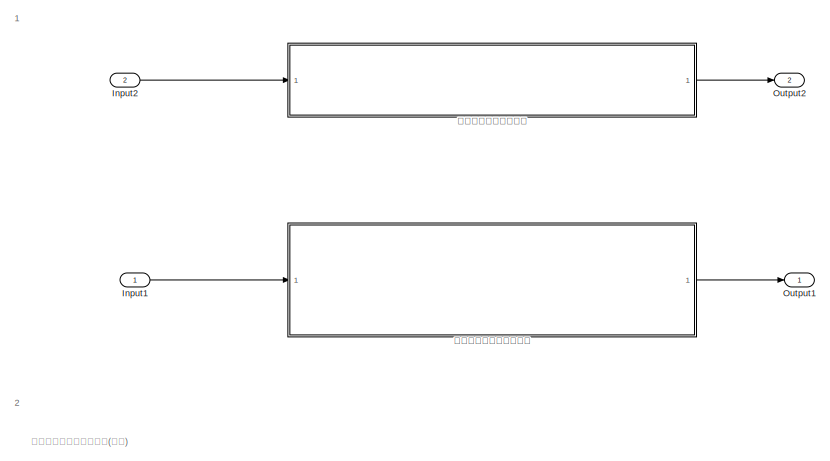
[diagram: root canvas - part 1/7, top left region]
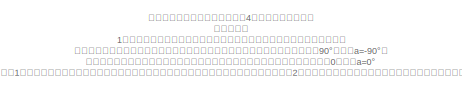
[diagram: root canvas - part 2/7, top left region]
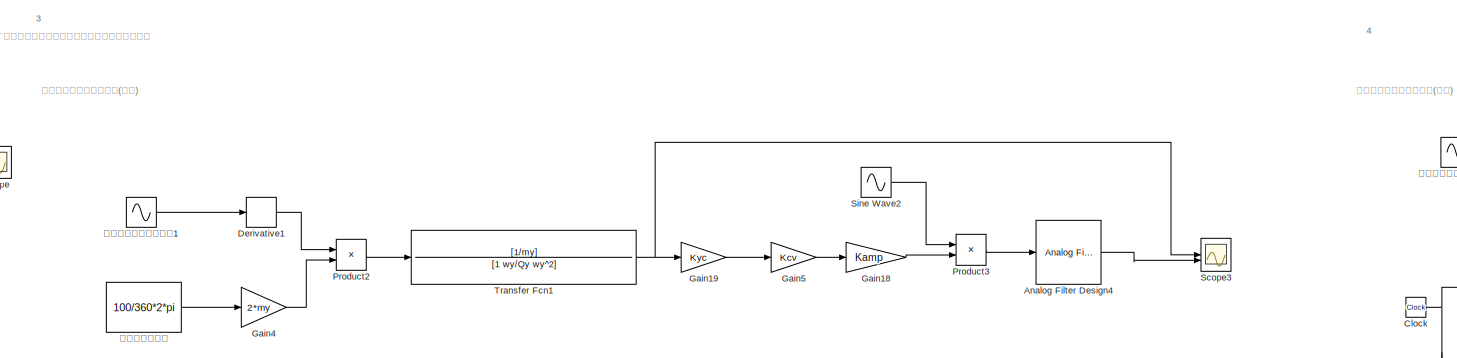
[diagram: root canvas - part 3/7, top center region]
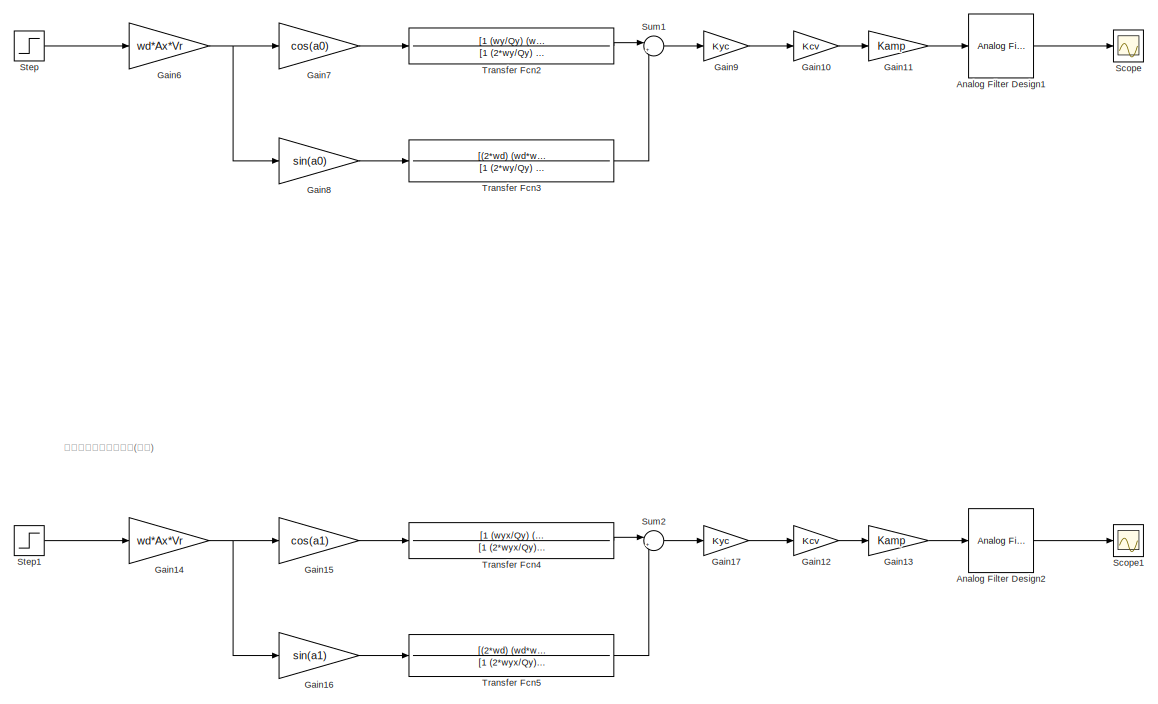
[diagram: root canvas - part 4/7, middle left region]
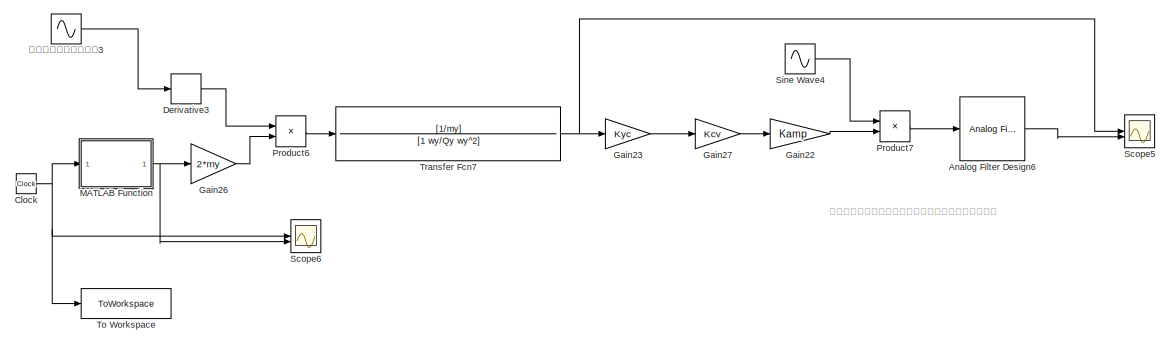
[diagram: root canvas - part 5/7, middle right region]
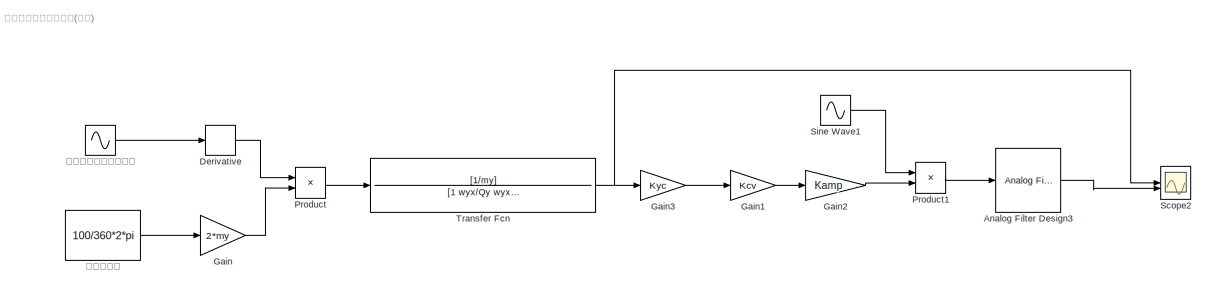
[diagram: root canvas - part 6/7, central region]
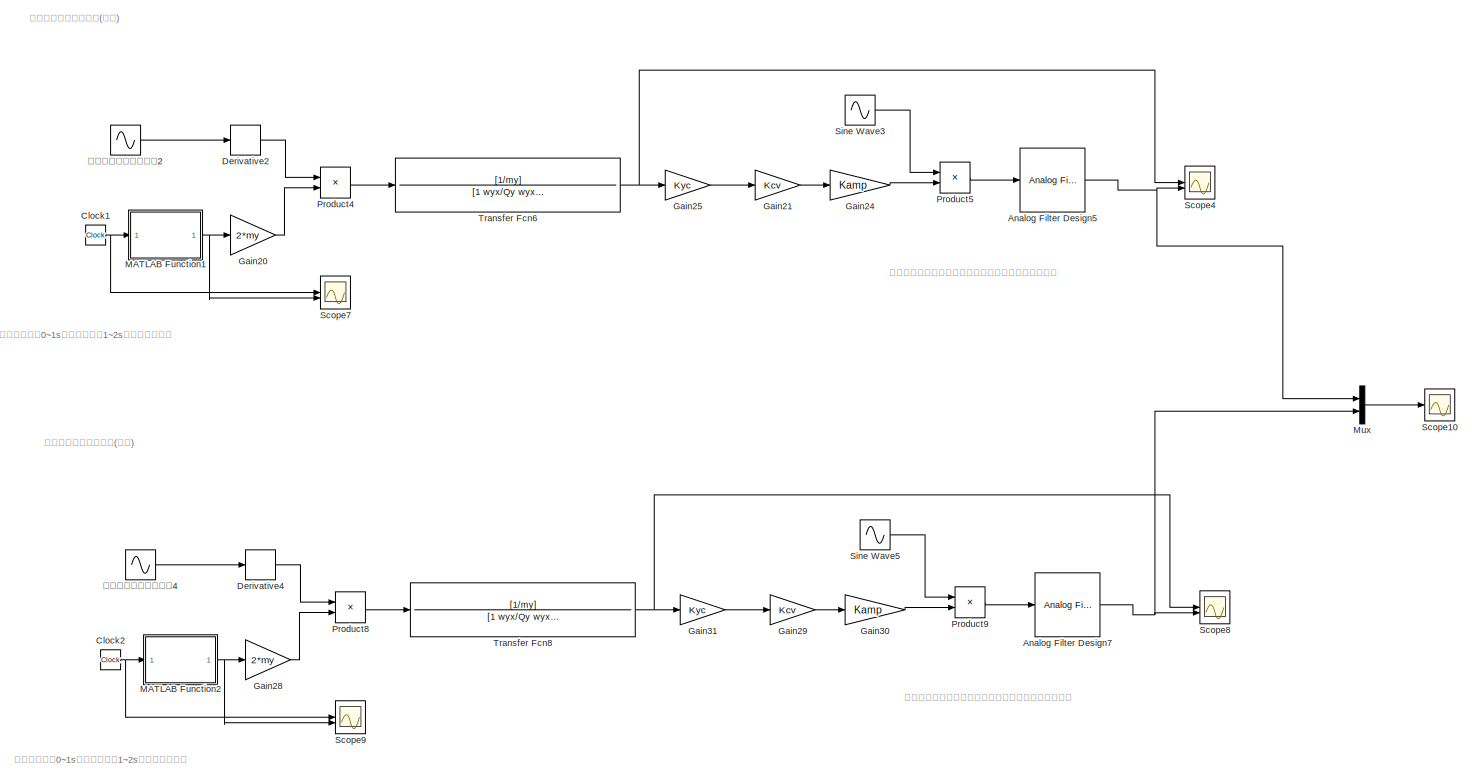
[diagram: root canvas - part 7/7, bottom right region]
MODEL slx_76fa1feacb82
KIND model
CONFIG AbsTol = auto
CONFIG EnableMultiTasking = off
CONFIG FixedStep = auto
CONFIG MaxStep = 1e-5
CONFIG MinStep = auto
CONFIG RelTol = 1e-3
CONFIG SampleTimeConstraint = Unconstrained
CONFIG SolverName = VariableStepAuto
CONFIG StartTime = 0.0
CONFIG StopTime = 10
WORKSPACE source: mxarray member
WORKSPACE Ax = 5e-06
WORKSPACE Kamp = 210
WORKSPACE Kcv = 3.5
WORKSPACE Kyc = 114810
WORKSPACE Qy = 320
WORKSPACE Vr = 1
WORKSPACE a0 = 0
WORKSPACE a1 = -1.57079632679
WORKSPACE my = 6.7e-07
WORKSPACE wd = 24001.7678734
WORKSPACE wy = 24416.4581037
WORKSPACE wyx = 24001.7678734
BLOCK [Reference] Analog Filter Design1  REF=dsparch4/Analog
Filter Design
  SourceBlock = dsparch4/Analog\nFilter Design
  SourceType = Analog Filter Design
BLOCK [Reference] Analog Filter Design2  REF=dsparch4/Analog
Filter Design
  SourceBlock = dsparch4/Analog\nFilter Design
  SourceType = Analog Filter Design
BLOCK [Reference] Analog Filter Design3  REF=dsparch4/Analog
Filter Design
  SourceBlock = dsparch4/Analog\nFilter Design
  SourceType = Analog Filter Design
BLOCK [Reference] Analog Filter Design4  REF=dsparch4/Analog
Filter Design
  SourceBlock = dsparch4/Analog\nFilter Design
  SourceType = Analog Filter Design
BLOCK [Reference] Analog Filter Design5  REF=dsparch4/Analog
Filter Design
  SourceBlock = dsparch4/Analog\nFilter Design
  SourceType = Analog Filter Design
BLOCK [Reference] Analog Filter Design6  REF=dsparch4/Analog
Filter Design
  SourceBlock = dsparch4/Analog\nFilter Design
  SourceType = Analog Filter Design
BLOCK [Reference] Analog Filter Design7  REF=dsparch4/Analog
Filter Design
  SourceBlock = dsparch4/Analog\nFilter Design
  SourceType = Analog Filter Design
BLOCK [Clock] Clock
BLOCK [Clock] Clock1
BLOCK [Clock] Clock2
BLOCK [Derivative] Derivative
BLOCK [Derivative] Derivative1
BLOCK [Derivative] Derivative2
BLOCK [Derivative] Derivative3
BLOCK [Derivative] Derivative4
BLOCK [Gain] Gain
  Gain = 2*my
BLOCK [Gain] Gain1
  Gain = Kcv
BLOCK [Gain] Gain10
  Gain = Kcv
BLOCK [Gain] Gain11
  Gain = Kamp
BLOCK [Gain] Gain12
  Gain = Kcv
BLOCK [Gain] Gain13
  Gain = Kamp
BLOCK [Gain] Gain14
  Gain = wd*Ax*Vr
BLOCK [Gain] Gain15
  Gain = cos(a1)
BLOCK [Gain] Gain16
  Gain = sin(a1)
BLOCK [Gain] Gain17
  Gain = Kyc
BLOCK [Gain] Gain18
  Gain = Kamp
BLOCK [Gain] Gain19
  Gain = Kyc
BLOCK [Gain] Gain2
  Gain = Kamp
BLOCK [Gain] Gain20
  Gain = 2*my
BLOCK [Gain] Gain21
  Gain = Kcv
BLOCK [Gain] Gain22
  Gain = Kamp
BLOCK [Gain] Gain23
  Gain = Kyc
BLOCK [Gain] Gain24
  Gain = Kamp
BLOCK [Gain] Gain25
  Gain = Kyc
BLOCK [Gain] Gain26
  Gain = 2*my
BLOCK [Gain] Gain27
  Gain = Kcv
BLOCK [Gain] Gain28
  Gain = 2*my
BLOCK [Gain] Gain29
  Gain = Kcv
BLOCK [Gain] Gain3
  Gain = Kyc
BLOCK [Gain] Gain30
  Gain = Kamp
BLOCK [Gain] Gain31
  Gain = Kyc
BLOCK [Gain] Gain4
  Gain = 2*my
BLOCK [Gain] Gain5
  Gain = Kcv
BLOCK [Gain] Gain6
  Gain = wd*Ax*Vr
BLOCK [Gain] Gain7
  Gain = cos(a0)
BLOCK [Gain] Gain8
  Gain = sin(a0)
BLOCK [Gain] Gain9
  Gain = Kyc
BLOCK [Inport] Input1
BLOCK [Inport] Input2
  Port = 2
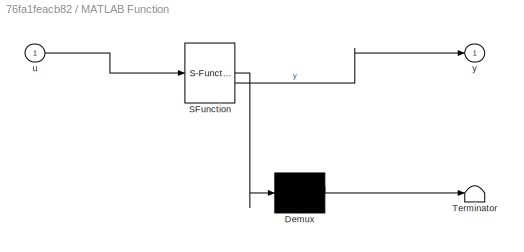
BLOCK [SubSystem] MATLAB Function
  ErrorFcn = Stateflow.Translate.translate
  LibrarySourceBlock = simulink/User-Defined\nFunctions/MATLAB Function
  PermitHierarchicalResolution = ExplicitOnly
  SFBlockType = MATLAB Function
  TreatAsAtomicUnit = on
BLOCK [Demux] MATLAB Function/ Demux 
  Outputs = 1
BLOCK [S-Function] MATLAB Function/ SFunction 
  EnableBusSupport = on
  FunctionName = sf_sfun
  PortCounts = [1 2]
  SFcnIsStateOwnerBlock = off
  SFunctionDeploymentMode = off
  Tag = Stateflow S-Function 2
BLOCK [Terminator] MATLAB Function/ Terminator 
BLOCK [Inport] MATLAB Function/u
BLOCK [Outport] MATLAB Function/y
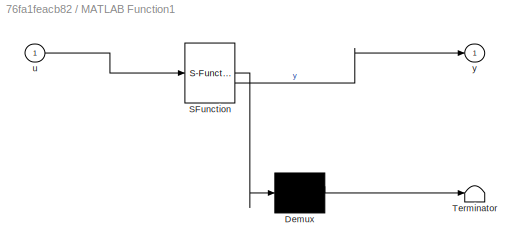
BLOCK [SubSystem] MATLAB Function1
  ErrorFcn = Stateflow.Translate.translate
  LibrarySourceBlock = simulink/User-Defined\nFunctions/MATLAB Function
  PermitHierarchicalResolution = ExplicitOnly
  SFBlockType = MATLAB Function
  TreatAsAtomicUnit = on
BLOCK [Demux] MATLAB Function1/ Demux 
  Outputs = 1
BLOCK [S-Function] MATLAB Function1/ SFunction 
  EnableBusSupport = on
  FunctionName = sf_sfun
  PortCounts = [1 2]
  SFcnIsStateOwnerBlock = off
  SFunctionDeploymentMode = off
  Tag = Stateflow S-Function 1
BLOCK [Terminator] MATLAB Function1/ Terminator 
BLOCK [Inport] MATLAB Function1/u
BLOCK [Outport] MATLAB Function1/y
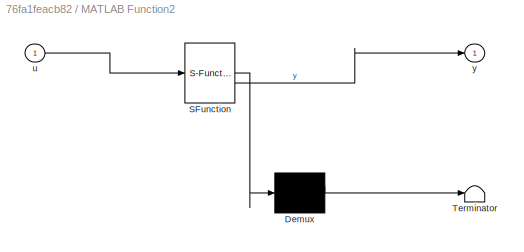
BLOCK [SubSystem] MATLAB Function2
  ErrorFcn = Stateflow.Translate.translate
  LibrarySourceBlock = simulink/User-Defined\nFunctions/MATLAB Function
  PermitHierarchicalResolution = ExplicitOnly
  SFBlockType = MATLAB Function
  TreatAsAtomicUnit = on
BLOCK [Demux] MATLAB Function2/ Demux 
  Outputs = 1
BLOCK [S-Function] MATLAB Function2/ SFunction 
  EnableBusSupport = on
  FunctionName = sf_sfun
  PortCounts = [1 2]
  SFcnIsStateOwnerBlock = off
  SFunctionDeploymentMode = off
  Tag = Stateflow S-Function 3
BLOCK [Terminator] MATLAB Function2/ Terminator 
BLOCK [Inport] MATLAB Function2/u
BLOCK [Outport] MATLAB Function2/y
BLOCK [Mux] Mux
  DisplayOption = bar
  Inputs = 2
BLOCK [Outport] Output1
BLOCK [Outport] Output2
  Port = 2
BLOCK [Product] Product
BLOCK [Product] Product1
BLOCK [Product] Product2
BLOCK [Product] Product3
BLOCK [Product] Product4
BLOCK [Product] Product5
BLOCK [Product] Product6
BLOCK [Product] Product7
BLOCK [Product] Product8
BLOCK [Product] Product9
BLOCK [Scope] Scope
  Floating = off
  NumInputPorts = 1
  ScopeSpecificationString = Simulink.scopes.TimeScopeBlockCfg('CurrentConfiguration', extmgr.ConfigurationSet(extmgr.Configuration('Core','General UI',true),extmgr.Configuration('Core','Source UI',true),extmgr.Configuration('Sources','WiredSimulink',true),extmgr.Configuration('Visuals','Time Domain',true,'SerializedDisplays',{struct('MinYLimReal','-0.1048','MaxYLimReal','0.94323','YLabelReal','','MinYLimMag','0.00000','MaxYL...<+1438ch>
BLOCK [Scope] Scope1
  Floating = off
  NumInputPorts = 1
  ScopeSpecificationString = Simulink.scopes.TimeScopeBlockCfg('CurrentConfiguration', extmgr.ConfigurationSet(extmgr.Configuration('Core','General UI',true),extmgr.Configuration('Core','Source UI',true),extmgr.Configuration('Sources','WiredSimulink',true,'DataLoggingVariableName','ScopeData1'),extmgr.Configuration('Visuals','Time Domain',true,'SerializedDisplays',{struct('MinYLimReal','-0.70316','MaxYLimReal','6.32844','YLab...<+1480ch>
BLOCK [Scope] Scope10
  Floating = off
  NumInputPorts = 1
  ScopeSpecificationString = Simulink.scopes.TimeScopeBlockCfg('CurrentConfiguration', extmgr.ConfigurationSet(extmgr.Configuration('Core','General UI',true),extmgr.Configuration('Core','Source UI',true),extmgr.Configuration('Sources','WiredSimulink',true,'DataLoggingVariableName','ScopeData3'),extmgr.Configuration('Visuals','Time Domain',true,'SerializedDisplays',{struct('MinYLimReal','-9.09372','MaxYLimReal','11.87762','YLa...<+1462ch>
BLOCK [Scope] Scope2
  Floating = off
  NumInputPorts = 2
  ScopeSpecificationString = Simulink.scopes.TimeScopeBlockCfg('CurrentConfiguration', extmgr.ConfigurationSet(extmgr.Configuration('Core','General UI',true),extmgr.Configuration('Core','Source UI',true),extmgr.Configuration('Sources','WiredSimulink',true,'DataLoggingVariableName','ScopeData2'),extmgr.Configuration('Visuals','Time Domain',true,'SerializedDisplays',{struct('MinYLimReal','-0.00000029','MaxYLimReal','0.00000029'...<+2110ch>
BLOCK [Scope] Scope3
  Floating = off
  NumInputPorts = 2
  ScopeSpecificationString = Simulink.scopes.TimeScopeBlockCfg('CurrentConfiguration', extmgr.ConfigurationSet(extmgr.Configuration('Core','General UI',true),extmgr.Configuration('Core','Source UI',true),extmgr.Configuration('Sources','WiredSimulink',true,'DataLoggingVariableName','ScopeData3'),extmgr.Configuration('Visuals','Time Domain',true,'SerializedDisplays',{struct('MinYLimReal','-0.000000045','MaxYLimReal','0.00000004...<+2112ch>
BLOCK [Scope] Scope4
  Floating = off
  NumInputPorts = 2
  ScopeSpecificationString = Simulink.scopes.TimeScopeBlockCfg('CurrentConfiguration', extmgr.ConfigurationSet(extmgr.Configuration('Core','General UI',true),extmgr.Configuration('Core','Source UI',true),extmgr.Configuration('Sources','WiredSimulink',true,'DataLoggingVariableName','ScopeData4'),extmgr.Configuration('Visuals','Time Domain',true,'SerializedDisplays',{struct('MinYLimReal','-0.00000021','MaxYLimReal','0.00000021'...<+2673ch>
BLOCK [Scope] Scope5
  Floating = off
  NumInputPorts = 2
  ScopeSpecificationString = Simulink.scopes.TimeScopeBlockCfg('CurrentConfiguration', extmgr.ConfigurationSet(extmgr.Configuration('Core','General UI',true),extmgr.Configuration('Core','Source UI',true),extmgr.Configuration('Sources','WiredSimulink',true,'DataLoggingVariableName','ScopeData5'),extmgr.Configuration('Visuals','Time Domain',true,'SerializedDisplays',{struct('MinYLimReal','-0.00000013','MaxYLimReal','0.00000013'...<+2156ch>
BLOCK [Scope] Scope6
  Floating = off
  NumInputPorts = 2
  ScopeSpecificationString = Simulink.scopes.TimeScopeBlockCfg('CurrentConfiguration', extmgr.ConfigurationSet(extmgr.Configuration('Core','General UI',true),extmgr.Configuration('Core','Source UI',true),extmgr.Configuration('Sources','WiredSimulink',true,'DataLoggingVariableName','ScopeData6'),extmgr.Configuration('Visuals','Time Domain',true,'SerializedDisplays',{struct('MinYLimReal','-0.12499','MaxYLimReal','1.12488','YLab...<+2477ch>
BLOCK [Scope] Scope7
  Floating = off
  NumInputPorts = 2
  ScopeSpecificationString = Simulink.scopes.TimeScopeBlockCfg('CurrentConfiguration', extmgr.ConfigurationSet(extmgr.Configuration('Core','General UI',true),extmgr.Configuration('Core','Source UI',true),extmgr.Configuration('Sources','WiredSimulink',true,'DataLoggingVariableName','ScopeData7'),extmgr.Configuration('Visuals','Time Domain',true,'SerializedDisplays',{struct('MinYLimReal','-0.25','MaxYLimReal','2.25','YLabelReal...<+2132ch>
BLOCK [Scope] Scope8
  Floating = off
  NumInputPorts = 2
  ScopeSpecificationString = Simulink.scopes.TimeScopeBlockCfg('CurrentConfiguration', extmgr.ConfigurationSet(extmgr.Configuration('Core','General UI',true),extmgr.Configuration('Core','Source UI',true),extmgr.Configuration('Sources','WiredSimulink',true,'DataLoggingVariableName','ScopeData1'),extmgr.Configuration('Visuals','Time Domain',true,'SerializedDisplays',{struct('MinYLimReal','-0.00000029','MaxYLimReal','0.00000029'...<+2648ch>
BLOCK [Scope] Scope9
  Floating = off
  NumInputPorts = 2
  ScopeSpecificationString = Simulink.scopes.TimeScopeBlockCfg('CurrentConfiguration', extmgr.ConfigurationSet(extmgr.Configuration('Core','General UI',true),extmgr.Configuration('Core','Source UI',true),extmgr.Configuration('Sources','WiredSimulink',true,'DataLoggingVariableName','ScopeData2'),extmgr.Configuration('Visuals','Time Domain',true,'SerializedDisplays',{struct('MinYLimReal','-0.25','MaxYLimReal','2.25','YLabelReal...<+2132ch>
BLOCK [Sin] Sine Wave1
  Frequency = wd
  SampleTime = 0
BLOCK [Sin] Sine Wave2
  Frequency = wd
  Phase = pi/2
  SampleTime = 0
BLOCK [Sin] Sine Wave3
  Frequency = wd
  SampleTime = 0
BLOCK [Sin] Sine Wave4
  Frequency = wd
  Phase = 90
  SampleTime = 0
BLOCK [Sin] Sine Wave5
  Frequency = wd
  SampleTime = 0
BLOCK [Step] Step
  SampleTime = 0
  Time = 0
BLOCK [Step] Step1
  SampleTime = 0
  Time = 0
BLOCK [Sum] Sum1
  Inputs = |+-
BLOCK [Sum] Sum2
  Inputs = |+-
BLOCK [ToWorkspace] To Workspace
  FixptAsFi = on
  MaxDataPoints = inf
  SampleTime = -1
  SaveFormat = Timeseries
  VariableName = simout
BLOCK [TransferFcn] Transfer Fcn
  Denominator = [1 wyx/Qy wyx^2]
  Numerator = [1/my]
BLOCK [TransferFcn] Transfer Fcn1
  Denominator = [1 wy/Qy wy^2]
  Numerator = [1/my]
BLOCK [TransferFcn] Transfer Fcn2
  Denominator = [1 (2*wy/Qy) (2*wd^2+2*wy^2+wy^2/Qy^2) (2*wy*(wd^2+wy^2)/Qy) (wd^4+wy^4+wd^2*wy^2/Qy^2-2*wd^2*wy^2)]
  Numerator = [1 (wy/Qy) (wy^2-wd^2)]
BLOCK [TransferFcn] Transfer Fcn3
  Denominator = [1 (2*wy/Qy) (2*wd^2+2*wy^2+wy^2/Qy^2) (2*wy*(wd^2+wy^2)/Qy) (wd^4+wy^4+wd^2*wy^2/Qy^2-2*wd^2*wy^2)]
  Numerator = [(2*wd) (wd*wy/Qy)]
BLOCK [TransferFcn] Transfer Fcn4
  Denominator = [1 (2*wyx/Qy) (2*wd^2+2*wyx^2+wyx^2/Qy^2) (2*wyx*(wd^2+wyx^2)/Qy) (wd^4+wyx^4+wd^2*wyx^2/Qy^2-2*wd^2*wyx^2)]
  Numerator = [1 (wyx/Qy) (wyx^2-wd^2)]
BLOCK [TransferFcn] Transfer Fcn5
  Denominator = [1 (2*wyx/Qy) (2*wd^2+2*wyx^2+wyx^2/Qy^2) (2*wyx*(wd^2+wyx^2)/Qy) (wd^4+wyx^4+wd^2*wyx^2/Qy^2-2*wd^2*wyx^2)]
  Numerator = [(2*wd) (wd*wyx/Qy)]
BLOCK [TransferFcn] Transfer Fcn6
  Denominator = [1 wyx/Qy wyx^2]
  Numerator = [1/my]
BLOCK [TransferFcn] Transfer Fcn7
  Denominator = [1 wy/Qy wy^2]
  Numerator = [1/my]
BLOCK [TransferFcn] Transfer Fcn8
  Denominator = [1 wyx/Qy wyx^2]
  Numerator = [1/my]
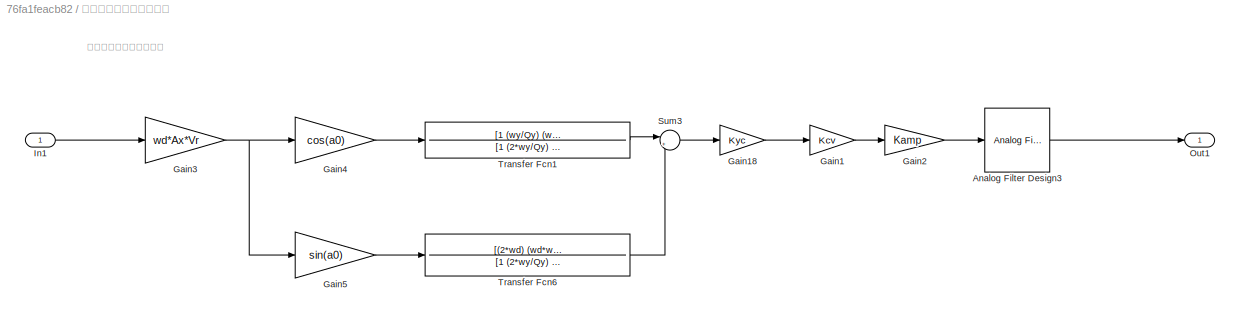
BLOCK [SubSystem] 模态不匹配开环检测系统
BLOCK [Reference] 模态不匹配开环检测系统/Analog Filter Design3  REF=dsparch4/Analog
Filter Design
  SourceBlock = dsparch4/Analog\nFilter Design
  SourceType = Analog Filter Design
BLOCK [Gain] 模态不匹配开环检测系统/Gain1
  Gain = Kcv
BLOCK [Gain] 模态不匹配开环检测系统/Gain18
  Gain = Kyc
BLOCK [Gain] 模态不匹配开环检测系统/Gain2
  Gain = Kamp
BLOCK [Gain] 模态不匹配开环检测系统/Gain3
  Gain = wd*Ax*Vr
BLOCK [Gain] 模态不匹配开环检测系统/Gain4
  Gain = cos(a0)
BLOCK [Gain] 模态不匹配开环检测系统/Gain5
  Gain = sin(a0)
BLOCK [Inport] 模态不匹配开环检测系统/In1
BLOCK [Outport] 模态不匹配开环检测系统/Out1
BLOCK [Sum] 模态不匹配开环检测系统/Sum3
  Inputs = |+-
BLOCK [TransferFcn] 模态不匹配开环检测系统/Transfer Fcn1
  Denominator = [1 (2*wy/Qy) (2*wd^2+2*wy^2+wy^2/Qy^2) (2*wy*(wd^2+wy^2)/Qy) (wd^4+wy^4+wd^2*wy^2/Qy^2-2*wd^2*wy^2)]
  Numerator = [1 (wy/Qy) (wy^2-wd^2)]
BLOCK [TransferFcn] 模态不匹配开环检测系统/Transfer Fcn6
  Denominator = [1 (2*wy/Qy) (2*wd^2+2*wy^2+wy^2/Qy^2) (2*wy*(wd^2+wy^2)/Qy) (wd^4+wy^4+wd^2*wy^2/Qy^2-2*wd^2*wy^2)]
  Numerator = [(2*wd) (wd*wy/Qy)]
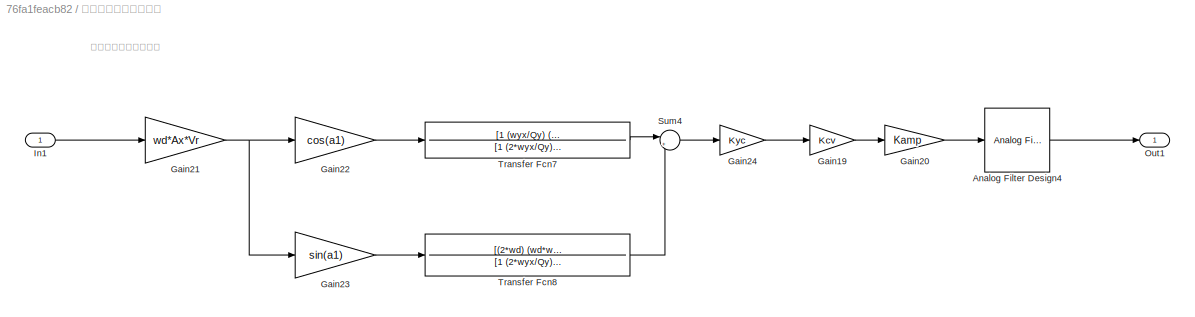
BLOCK [SubSystem] 模态匹配开环检测系统
BLOCK [Reference] 模态匹配开环检测系统/Analog Filter Design4  REF=dsparch4/Analog
Filter Design
  SourceBlock = dsparch4/Analog\nFilter Design
  SourceType = Analog Filter Design
BLOCK [Gain] 模态匹配开环检测系统/Gain19
  Gain = Kcv
BLOCK [Gain] 模态匹配开环检测系统/Gain20
  Gain = Kamp
BLOCK [Gain] 模态匹配开环检测系统/Gain21
  Gain = wd*Ax*Vr
BLOCK [Gain] 模态匹配开环检测系统/Gain22
  Gain = cos(a1)
BLOCK [Gain] 模态匹配开环检测系统/Gain23
  Gain = sin(a1)
BLOCK [Gain] 模态匹配开环检测系统/Gain24
  Gain = Kyc
BLOCK [Inport] 模态匹配开环检测系统/In1
BLOCK [Outport] 模态匹配开环检测系统/Out1
BLOCK [Sum] 模态匹配开环检测系统/Sum4
  Inputs = |+-
BLOCK [TransferFcn] 模态匹配开环检测系统/Transfer Fcn7
  Denominator = [1 (2*wyx/Qy) (2*wd^2+2*wyx^2+wyx^2/Qy^2) (2*wyx*(wd^2+wyx^2)/Qy) (wd^4+wyx^4+wd^2*wyx^2/Qy^2-2*wd^2*wyx^2)]
  Numerator = [1 (wyx/Qy) (wyx^2-wd^2)]
BLOCK [TransferFcn] 模态匹配开环检测系统/Transfer Fcn8
  Denominator = [1 (2*wyx/Qy) (2*wd^2+2*wyx^2+wyx^2/Qy^2) (2*wyx*(wd^2+wyx^2)/Qy) (wd^4+wyx^4+wd^2*wyx^2/Qy^2-2*wd^2*wyx^2)]
  Numerator = [(2*wd) (wd*wyx/Qy)]
BLOCK [Constant] 角速度输入
  Value = 100/360*2*pi
BLOCK [Constant] 角速度输入恒定
  Value = 100/360*2*pi
BLOCK [Sin] 驱动模态速度位移输入
  Amplitude = Ax
  Frequency = wd
  SampleTime = 0
BLOCK [Sin] 驱动模态速度位移输入1
  Amplitude = Ax
  Frequency = wd
  SampleTime = 0
BLOCK [Sin] 驱动模态速度位移输入2
  Amplitude = Ax
  Frequency = wd
  SampleTime = 0
BLOCK [Sin] 驱动模态速度位移输入3
  Amplitude = Ax
  Frequency = wd
  SampleTime = 0
BLOCK [Sin] 驱动模态速度位移输入4
  Amplitude = Ax
  Frequency = wd
  SampleTime = 0
ANNOTATION (root): 结果如果不对，看看解调正弦信号的相位是否正确
ANNOTATION (root): 仿真说明 ：参考杨成博士论文第4章开环检测部分仿真 仿真解释 ： 1）所有仿真均为开环检测系统，但是分为模态匹配与模态不匹配两大类： 模态匹配特点时 则驱动与检测模态谐振频率相同，因此哥氏信号经检测模态相移90°，因此a=-90°。 模态不匹配时 驱动与检测模态间有频差，因此哥氏信号经检测模态后相移几乎为0，因此a=0° 2）一共四个仿真： 1 中对两种状态开环检测系统进行线性分析，即进行奈奎斯特图、零极点图、伯德图观测； 2 中从频域传递函数角度观测 两种状态开环检测系统的阶跃响应输出； 3 中从时域出发观测在稳定驱动位移信号与恒定角速度输入时系统输出的状态； 4 中较 3 所不同的是，输入角速度在0~1s内保持恒定，1~2s内发生线性增加只150Hz,观测系统的输出。
ANNOTATION (root): 模态不匹配开环检测系统(时域)
ANNOTATION (root): 模态匹配开环检测系统(时域)
ANNOTATION (root): 1
ANNOTATION (root): 2
ANNOTATION (root): 3
ANNOTATION (root): 4
ANNOTATION (root): 模态不匹配开环检测系统(频域)
ANNOTATION (root): 模态匹配开环检测系统(频域)
ANNOTATION (root): 观测开环检测输出随输入角速度频率变化，可反应带宽
ANNOTATION (root): 输入角速度：0~1s内恒定输入；1~2s内线性频率增加
ANNOTATION 模态不匹配开环检测系统: 模态不匹配开环检测系统
ANNOTATION 模态匹配开环检测系统: 模态匹配开环检测系统
LINE Analog Filter Design1:1 -> Scope:1
LINE Analog Filter Design2:1 -> Scope1:1
LINE Analog Filter Design3:1 -> Scope2:2
LINE Analog Filter Design4:1 -> Scope3:2
NET Analog Filter Design5:1 -> Mux:1, Scope4:2
LINE Analog Filter Design6:1 -> Scope5:2
NET Analog Filter Design7:1 -> Mux:2, Scope8:2
NET Clock1:1 -> MATLAB Function1:1, Scope7:1
NET Clock2:1 -> MATLAB Function2:1, Scope9:1
NET Clock:1 -> MATLAB Function:1, Scope6:1, To Workspace:1
LINE Derivative1:1 -> Product2:1
LINE Derivative2:1 -> Product4:1
LINE Derivative3:1 -> Product6:1
LINE Derivative4:1 -> Product8:1
LINE Derivative:1 -> Product:1
LINE Gain10:1 -> Gain11:1
LINE Gain11:1 -> Analog Filter Design1:1
LINE Gain12:1 -> Gain13:1
LINE Gain13:1 -> Analog Filter Design2:1
NET Gain14:1 -> Gain15:1, Gain16:1
LINE Gain15:1 -> Transfer Fcn4:1
LINE Gain16:1 -> Transfer Fcn5:1
LINE Gain17:1 -> Gain12:1
LINE Gain18:1 -> Product3:2
LINE Gain19:1 -> Gain5:1
LINE Gain1:1 -> Gain2:1
LINE Gain20:1 -> Product4:2
LINE Gain21:1 -> Gain24:1
LINE Gain22:1 -> Product7:2
LINE Gain23:1 -> Gain27:1
LINE Gain24:1 -> Product5:2
LINE Gain25:1 -> Gain21:1
LINE Gain26:1 -> Product6:2
LINE Gain27:1 -> Gain22:1
LINE Gain28:1 -> Product8:2
LINE Gain29:1 -> Gain30:1
LINE Gain2:1 -> Product1:2
LINE Gain30:1 -> Product9:2
LINE Gain31:1 -> Gain29:1
LINE Gain3:1 -> Gain1:1
LINE Gain4:1 -> Product2:2
LINE Gain5:1 -> Gain18:1
NET Gain6:1 -> Gain7:1, Gain8:1
LINE Gain7:1 -> Transfer Fcn2:1
LINE Gain8:1 -> Transfer Fcn3:1
LINE Gain9:1 -> Gain10:1
LINE Gain:1 -> Product:2
LINE Input1:1 -> 模态不匹配开环检测系统:1
LINE Input2:1 -> 模态匹配开环检测系统:1
NET MATLAB Function1:1 -> Gain20:1, Scope7:2
NET MATLAB Function2:1 -> Gain28:1, Scope9:2
NET MATLAB Function:1 -> Gain26:1, Scope6:2
LINE Mux:1 -> Scope10:1
LINE Product1:1 -> Analog Filter Design3:1
LINE Product2:1 -> Transfer Fcn1:1
LINE Product3:1 -> Analog Filter Design4:1
LINE Product4:1 -> Transfer Fcn6:1
LINE Product5:1 -> Analog Filter Design5:1
LINE Product6:1 -> Transfer Fcn7:1
LINE Product7:1 -> Analog Filter Design6:1
LINE Product8:1 -> Transfer Fcn8:1
LINE Product9:1 -> Analog Filter Design7:1
LINE Product:1 -> Transfer Fcn:1
LINE Sine Wave1:1 -> Product1:1
LINE Sine Wave2:1 -> Product3:1
LINE Sine Wave3:1 -> Product5:1
LINE Sine Wave4:1 -> Product7:1
LINE Sine Wave5:1 -> Product9:1
LINE Step1:1 -> Gain14:1
LINE Step:1 -> Gain6:1
LINE Sum1:1 -> Gain9:1
LINE Sum2:1 -> Gain17:1
NET Transfer Fcn1:1 -> Gain19:1, Scope3:1
LINE Transfer Fcn2:1 -> Sum1:1
LINE Transfer Fcn3:1 -> Sum1:2
LINE Transfer Fcn4:1 -> Sum2:1
LINE Transfer Fcn5:1 -> Sum2:2
NET Transfer Fcn6:1 -> Gain25:1, Scope4:1
NET Transfer Fcn7:1 -> Gain23:1, Scope5:1
NET Transfer Fcn8:1 -> Gain31:1, Scope8:1
NET Transfer Fcn:1 -> Gain3:1, Scope2:1
LINE 模态不匹配开环检测系统/Analog Filter Design3:1 -> 模态不匹配开环检测系统/Out1:1
LINE 模态不匹配开环检测系统/Gain18:1 -> 模态不匹配开环检测系统/Gain1:1
LINE 模态不匹配开环检测系统/Gain1:1 -> 模态不匹配开环检测系统/Gain2:1
LINE 模态不匹配开环检测系统/Gain2:1 -> 模态不匹配开环检测系统/Analog Filter Design3:1
NET 模态不匹配开环检测系统/Gain3:1 -> 模态不匹配开环检测系统/Gain4:1, 模态不匹配开环检测系统/Gain5:1
LINE 模态不匹配开环检测系统/Gain4:1 -> 模态不匹配开环检测系统/Transfer Fcn1:1
LINE 模态不匹配开环检测系统/Gain5:1 -> 模态不匹配开环检测系统/Transfer Fcn6:1
LINE 模态不匹配开环检测系统/In1:1 -> 模态不匹配开环检测系统/Gain3:1
LINE 模态不匹配开环检测系统/Sum3:1 -> 模态不匹配开环检测系统/Gain18:1
LINE 模态不匹配开环检测系统/Transfer Fcn1:1 -> 模态不匹配开环检测系统/Sum3:1
LINE 模态不匹配开环检测系统/Transfer Fcn6:1 -> 模态不匹配开环检测系统/Sum3:2
LINE 模态不匹配开环检测系统:1 -> Output1:1
LINE 模态匹配开环检测系统/Analog Filter Design4:1 -> 模态匹配开环检测系统/Out1:1
LINE 模态匹配开环检测系统/Gain19:1 -> 模态匹配开环检测系统/Gain20:1
LINE 模态匹配开环检测系统/Gain20:1 -> 模态匹配开环检测系统/Analog Filter Design4:1
NET 模态匹配开环检测系统/Gain21:1 -> 模态匹配开环检测系统/Gain22:1, 模态匹配开环检测系统/Gain23:1
LINE 模态匹配开环检测系统/Gain22:1 -> 模态匹配开环检测系统/Transfer Fcn7:1
LINE 模态匹配开环检测系统/Gain23:1 -> 模态匹配开环检测系统/Transfer Fcn8:1
LINE 模态匹配开环检测系统/Gain24:1 -> 模态匹配开环检测系统/Gain19:1
LINE 模态匹配开环检测系统/In1:1 -> 模态匹配开环检测系统/Gain21:1
LINE 模态匹配开环检测系统/Sum4:1 -> 模态匹配开环检测系统/Gain24:1
LINE 模态匹配开环检测系统/Transfer Fcn7:1 -> 模态匹配开环检测系统/Sum4:1
LINE 模态匹配开环检测系统/Transfer Fcn8:1 -> 模态匹配开环检测系统/Sum4:2
LINE 模态匹配开环检测系统:1 -> Output2:1
LINE 角速度输入:1 -> Gain:1
LINE 角速度输入恒定:1 -> Gain4:1
LINE 驱动模态速度位移输入1:1 -> Derivative1:1
LINE 驱动模态速度位移输入2:1 -> Derivative2:1
LINE 驱动模态速度位移输入3:1 -> Derivative3:1
LINE 驱动模态速度位移输入4:1 -> Derivative4:1
LINE 驱动模态速度位移输入:1 -> Derivative:1
note: NET lines group one-source signal fan-out (src -> all destinations, sorted); 1:1 wires keep LINE
CHART MATLAB Function states=1 transitions=1
  STATE_LABEL 'eML_blk_kernel()'
  STATE_LABEL 'SCRIPT:\nfunction y = fcn(u)\nw=150*2*pi*(u-1);\nif(u<1)\n    y= 100/360*2*pi;\nelse\n    y = 100/360*2*pi*cos(w*(u-1));\nend\n\n'
CHART MATLAB Function2 states=1 transitions=1
  STATE_LABEL 'eML_blk_kernel()'
  STATE_LABEL 'SCRIPT:\nfunction y = fcn(u)\n% w=150*2*pi*(u-1);\n% if(u<1)\n%     y= 100/360*2*pi;\n% else\n%     y = 100/360*2*pi*cos(w*(u-1));\n% end\n\n%%% 变速率\n% w=150*2*pi*(u);\n% \n% y = 100/360*2*pi*cos(w*(u));\n\n%%% 恒定速率\nw=0*2*pi;\n\ny = 100/360*2*pi*cos(w*(u));\n'
CHART MATLAB Function1 states=1 transitions=1
  STATE_LABEL 'eML_blk_kernel()'
  STATE_LABEL 'SCRIPT:\nfunction y = fcn(u)\n% w=150*2*pi*(u-1);\n% if(u<1)\n%     y= 100/360*2*pi;\n% else\n%     y = 100/360*2*pi*cos(w*(u-1));\n% end\n\n%%% 变速率\n% w=150*2*pi*(u);\n% \n% y = 100/360*2*pi*cos(w*(u));\n\n%%% 恒定速率\nw=6*2*pi;\n\ny = 100/360*2*pi*cos(w*(u));\n'
CHART  states=0 transitions=0
CHART  states=0 transitions=0
CHART  states=0 transitions=0
